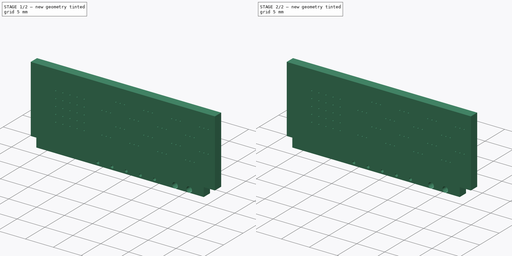
[diagram: build sequence overview — one tinted view per stage of 2, left to right]
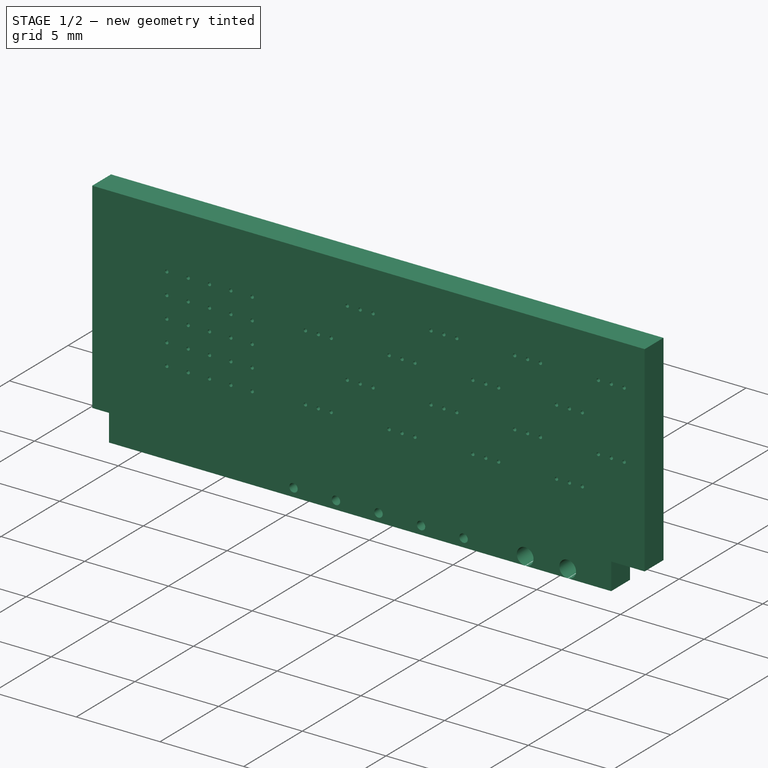
[diagram: stage 1 of 2 — iso view after this stage's code; geometry added in this stage tinted green]
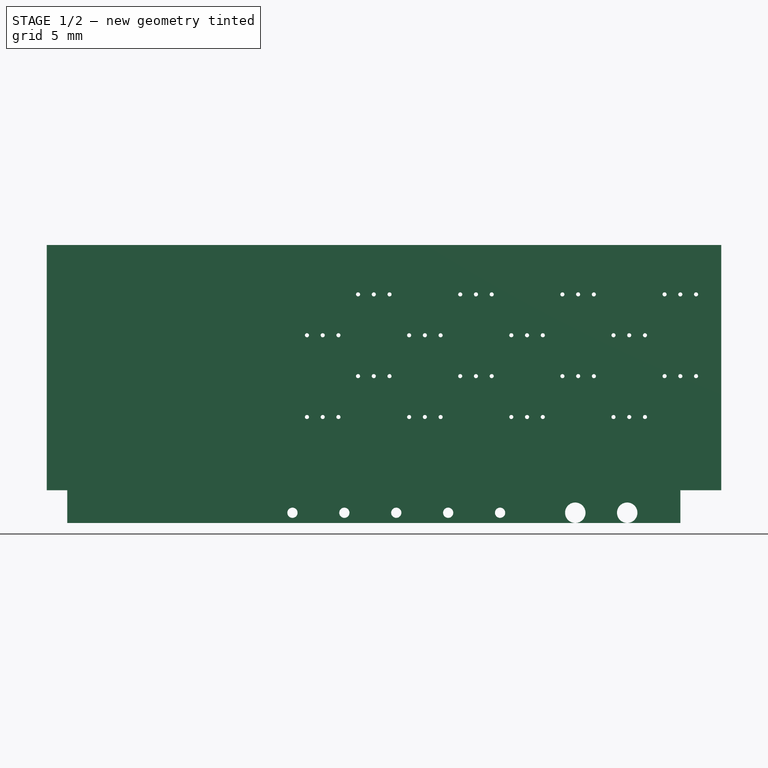
[diagram: stage 1 of 2 — front view after this stage's code; geometry added in this stage tinted green]
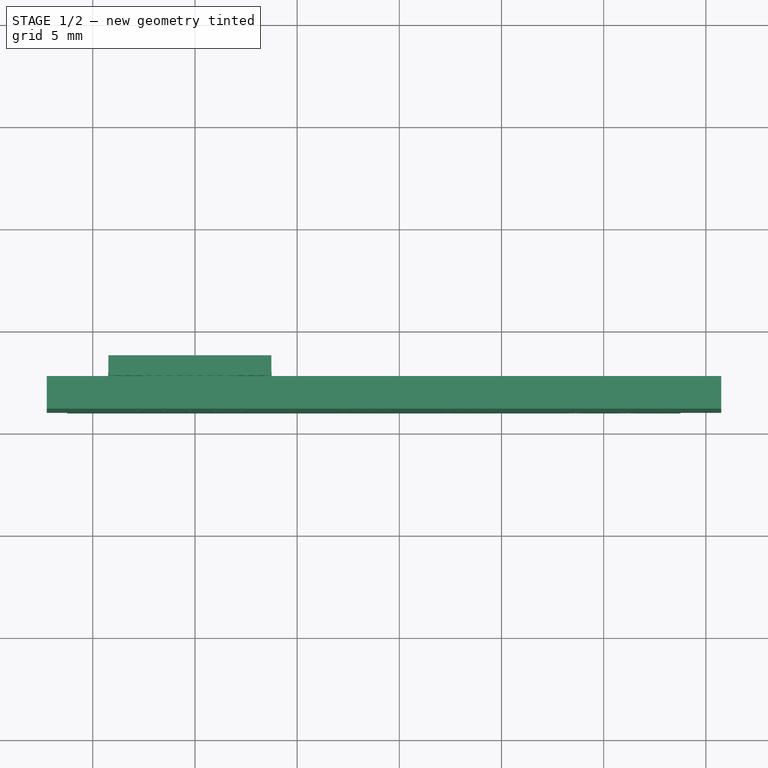
[diagram: stage 1 of 2 — top view after this stage's code; geometry added in this stage tinted green]
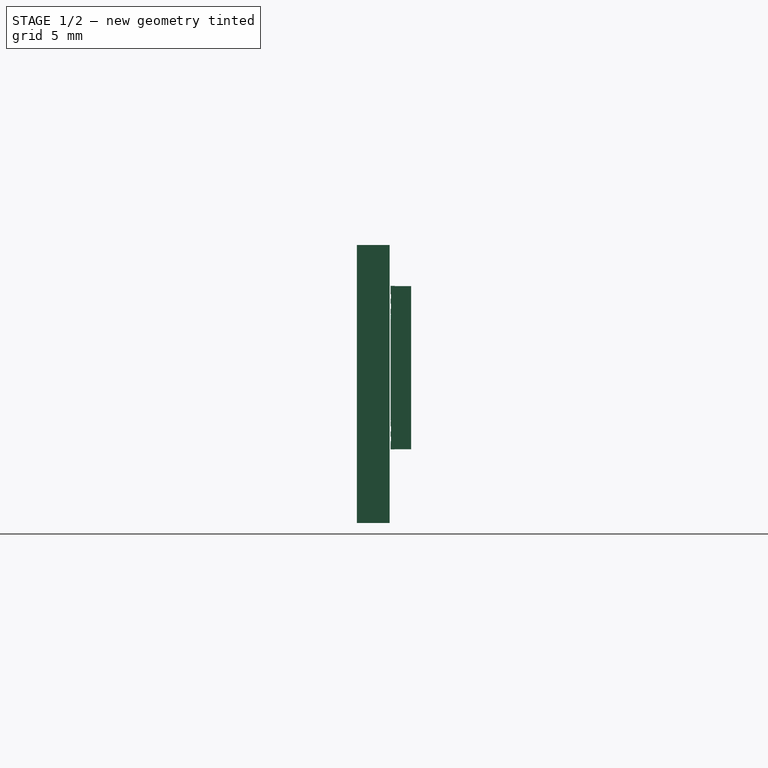
[diagram: stage 1 of 2 — right view after this stage's code; geometry added in this stage tinted green]
FCSTD DOCUMENT  (FreeCAD 0.18R14979 (Git))
Label: amulet_pcb_sizetest
License: All rights reserved
LicenseURL: http://en.wikipedia.org/wiki/All_rights_reserved
objects: PartDesign::Body×3, App::Part×3, PartDesign::FeatureBase×2, Part::Feature×1, Sketcher::SketchObject×1
note: 7 computed .brp shape members not serialized (recipe doc carries the construction recipe); baked Part::Feature solids carry a one-line shape summary decoded from their .brp

FEATURE [PartDesign::Body] Body
  Group = -> [Clone]
  Origin = -> Origin019
FEATURE [App::Part] Part004  label="Clone_1"
  Group = -> [Body]
  License = CC BY 3.0
  LicenseURL = http://creativecommons.org/licenses/by/3.0/
  Origin = -> Origin020
  Placement = pos=(0,0,0) rot=(0,0,1;1.0472rad)
FEATURE [PartDesign::FeatureBase] Clone001
  BaseFeature = -> COMPOUND_mp_cp001
  Placement = pos=(0,-44,0) rot=(0,0.707107,0.707107;3.14159rad)
FEATURE [PartDesign::Body] Body011
  Group = -> [Clone001]
  Origin = -> Origin022
FEATURE [App::Part] Part005  label="Clone_2"
  Group = -> [Body011]
  License = CC BY 3.0
  LicenseURL = http://creativecommons.org/licenses/by/3.0/
  Origin = -> Origin021
  Placement = pos=(0,0,0) rot=(0,0,1;-1.0472rad)
FEATURE [App::Part] Part003  label="LEDBoard_4x4_HD_test"
  Group = -> [COMPOUND_mp_cp001,Body009,Part004,Part005]
  License = CC BY 3.0
  LicenseURL = http://creativecommons.org/licenses/by/3.0/
  Origin = -> Origin013
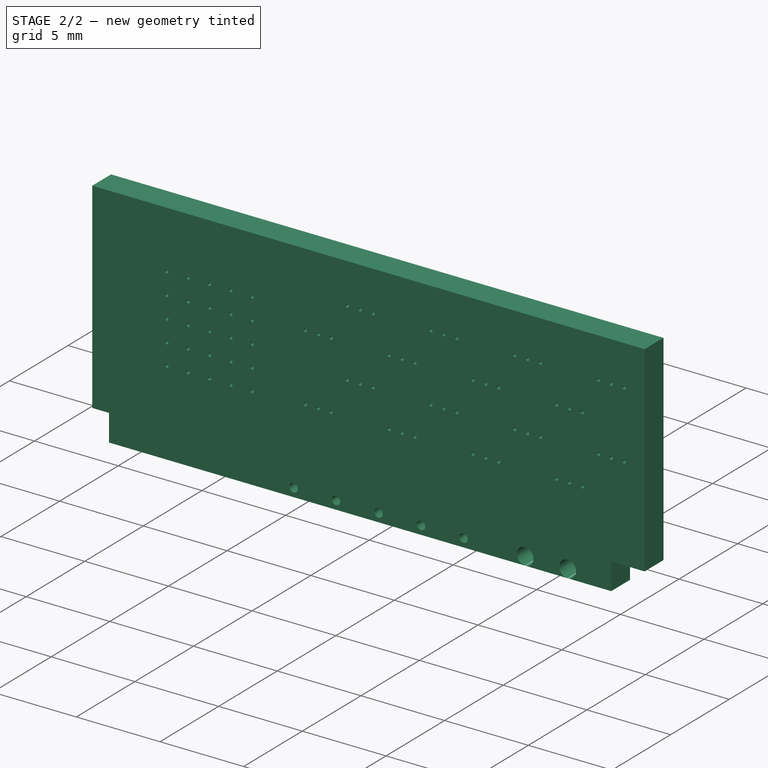
[diagram: stage 2 of 2 — iso view after this stage's code; geometry added in this stage tinted green]
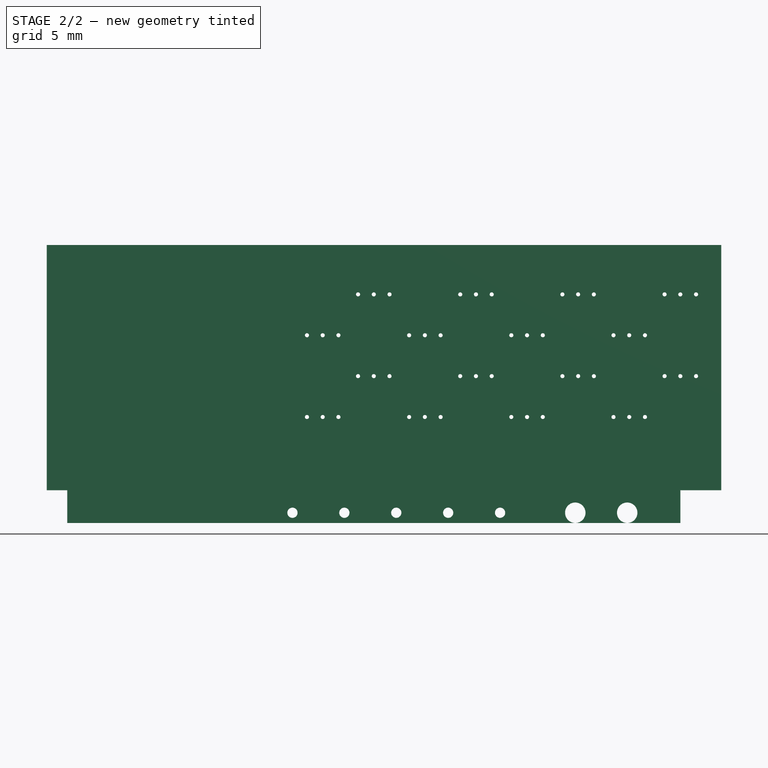
[diagram: stage 2 of 2 — front view after this stage's code; geometry added in this stage tinted green]
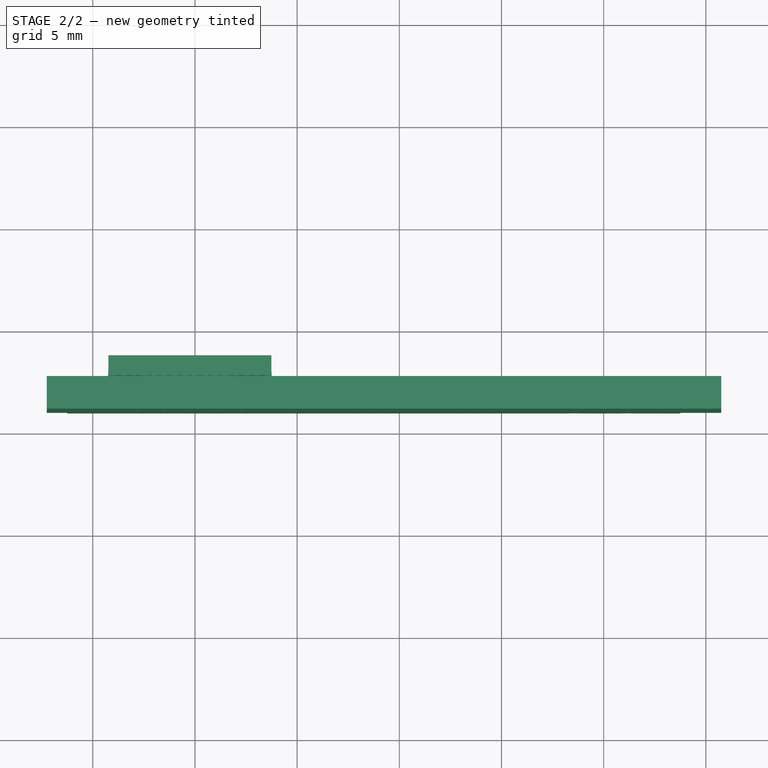
[diagram: stage 2 of 2 — top view after this stage's code; geometry added in this stage tinted green]
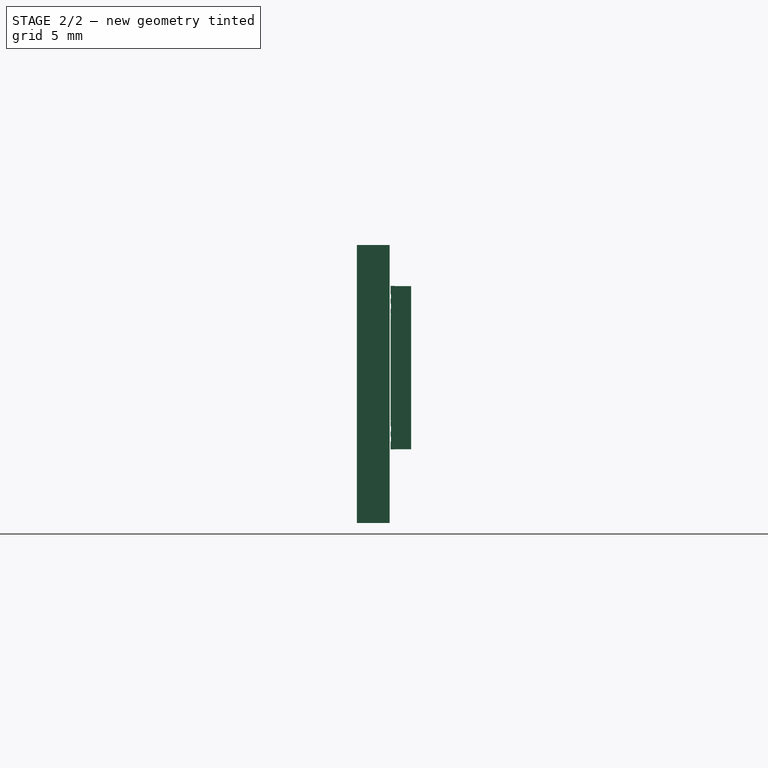
[diagram: stage 2 of 2 — right view after this stage's code; geometry added in this stage tinted green]
FEATURE [Part::Feature] COMPOUND_mp_cp001  label="LEDBoard_4x4_HD"
  Placement = pos=(0,-44,0) rot=(0,0.707107,0.707107;3.14159rad)
  shape: bbox 33 x 2.65 x 13.6 mm, 444 faces, 2 solids (baked)
FEATURE [Sketcher::SketchObject] Sketch017
  MapMode = 5
  Support = -> [XY_Plane017]
  sketch-geometry (16):
    g0: LineSegment StartX=11 StartY=-41.0526 StartZ=0 EndX=30.0526 EndY=-30.0526 EndZ=0
    g1: LineSegment StartX=30.0526 StartY=-30.0526 StartZ=0 EndX=41.0526 EndY=-11 EndZ=0
    g2: LineSegment StartX=41.0526 StartY=-11 StartZ=0 EndX=41.0526 EndY=11 EndZ=0
    g3: LineSegment StartX=41.0526 StartY=11 StartZ=0 EndX=30.0526 EndY=30.0526 EndZ=0
    g4: LineSegment StartX=30.0526 StartY=30.0526 StartZ=0 EndX=11 EndY=41.0526 EndZ=0
    g5: LineSegment StartX=11 StartY=41.0526 StartZ=0 EndX=-11 EndY=41.0526 EndZ=0
    g6: LineSegment StartX=-11 StartY=41.0526 StartZ=0 EndX=-30.0526 EndY=30.0526 EndZ=0
    g7: LineSegment StartX=-30.0526 StartY=30.0526 StartZ=0 EndX=-41.0526 EndY=11 EndZ=0
    g8: LineSegment StartX=-41.0526 StartY=11 StartZ=0 EndX=-41.0526 EndY=-11 EndZ=0
    g9: LineSegment StartX=-41.0526 StartY=-11 StartZ=0 EndX=-30.0526 EndY=-30.0526 EndZ=0
    g10: LineSegment StartX=-30.0526 StartY=-30.0526 StartZ=0 EndX=-11 EndY=-41.0526 EndZ=0
    g11: LineSegment StartX=-11 StartY=-41.0526 StartZ=0 EndX=11 EndY=-41.0526 EndZ=0
    g12: Circle [constr] CenterX=0 CenterY=0 CenterZ=0 NormalX=0 NormalY=0 NormalZ=1 AngleXU=0 Radius=42.5007
    g13: Circle CenterX=0 CenterY=0 CenterZ=0 NormalX=0 NormalY=0 NormalZ=1 AngleXU=0 Radius=52.5
    g14: Circle CenterX=0 CenterY=0 CenterZ=0 NormalX=0 NormalY=0 NormalZ=1 AngleXU=0 Radius=50
    g15: LineSegment StartX=20.5263 StartY=-35.5526 StartZ=0 EndX=25 EndY=-43.3013 EndZ=0
  constraints (37):
    c: Coincident(g0,g1)
    c: Coincident(g1,g2)
    c: Coincident(g2,g3)
    c: Coincident(g3,g4)
    c: Coincident(g4,g5)
    c: Coincident(g5,g6)
    c: Coincident(g6,g7)
    c: Coincident(g7,g8)
    c: Coincident(g8,g9)
    c: Coincident(g9,g10)
    c: Coincident(g10,g11)
    c: Coincident(g11,g0)
    c: Equal(g0, g1-g11) x11
    c: PointOnObject(g0,g12)
    c: PointOnObject(g1,g12)
    c: PointOnObject(g2,g12)
    c: PointOnObject(g3,g12)
    c: PointOnObject(g4,g12)
    c: PointOnObject(g5,g12)
    c: PointOnObject(g6,g12)
    c: PointOnObject(g7,g12)
    c: PointOnObject(g8,g12)
    c: PointOnObject(g9,g12)
    c: PointOnObject(g10,g12)
    c: PointOnObject(g11,g12)
    c: Coincident(g12,g-1)
    c: Horizontal(g11)
    c: DistanceX(g11,g11) = 22
    c: Diameter(g12) = 85.0015
    c: Coincident(g13,g-1)
    c: Diameter(g13) = 105
    c: Coincident(g14,g13)
    c: Radius(g14) = 50
    c: Symmetric(g0,g0,g15)
    c: Perpendicular(g0,g15)
    c: PointOnObject(g15,g14)
    c: Distance(g15) = 8.94744
FEATURE [PartDesign::Body] Body009  label="sketch_body"
  Group = -> [Sketch017]
  Origin = -> Origin017
FEATURE [PartDesign::FeatureBase] Clone
  BaseFeature = -> COMPOUND_mp_cp001
  Placement = pos=(0,-44,0) rot=(0,0.707107,0.707107;3.14159rad)
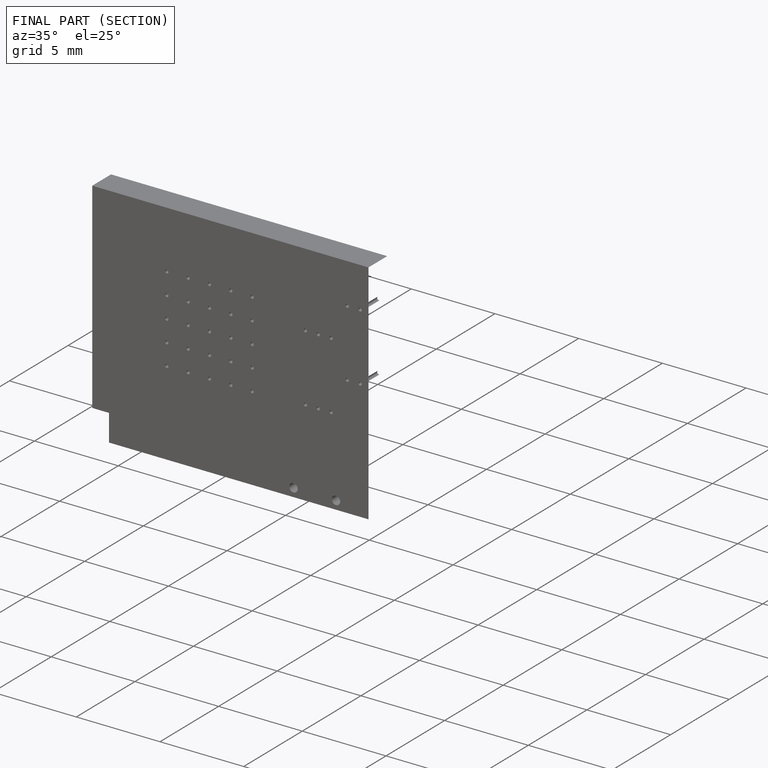
[diagram: finished part — half-section view (interior)]
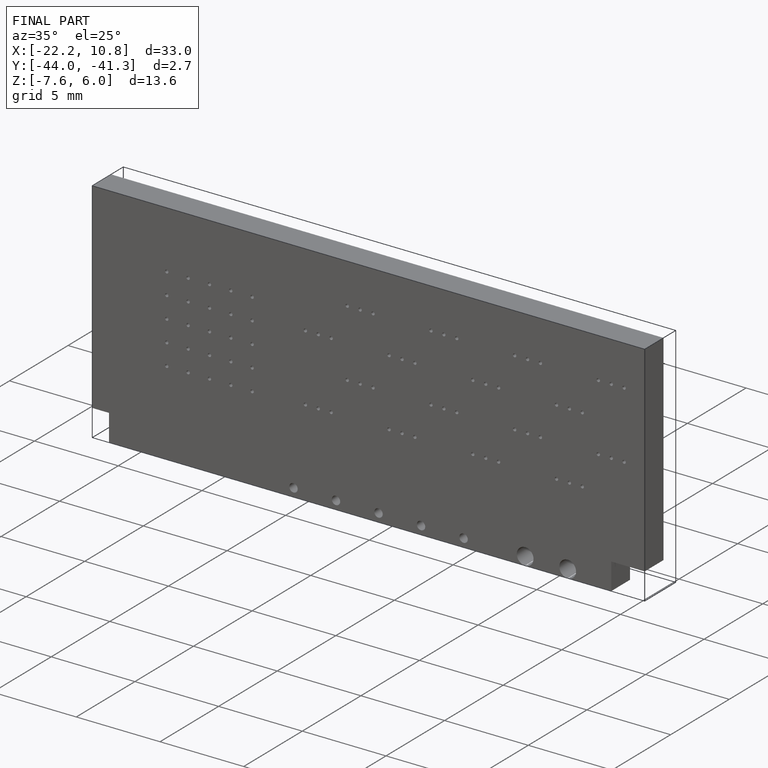
[diagram: finished part — iso view with bounding-box wireframe]
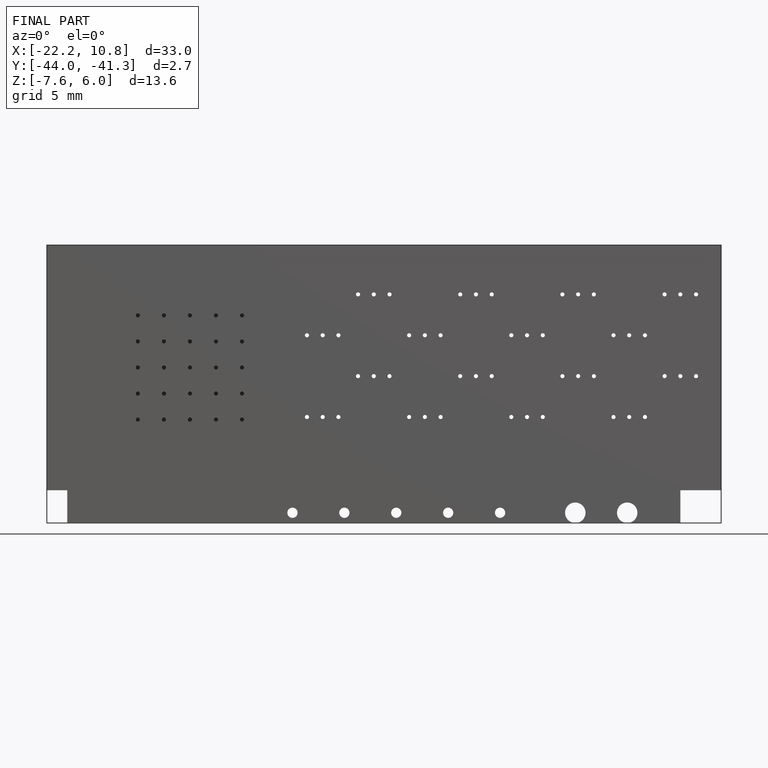
[diagram: finished part — front view with bounding-box wireframe]
